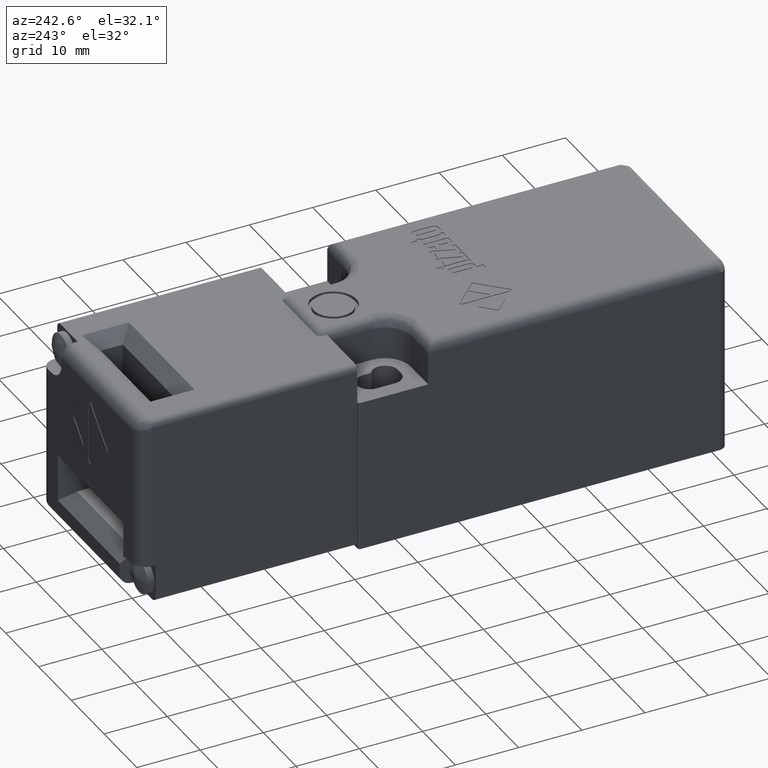
[diagram: clean part render]
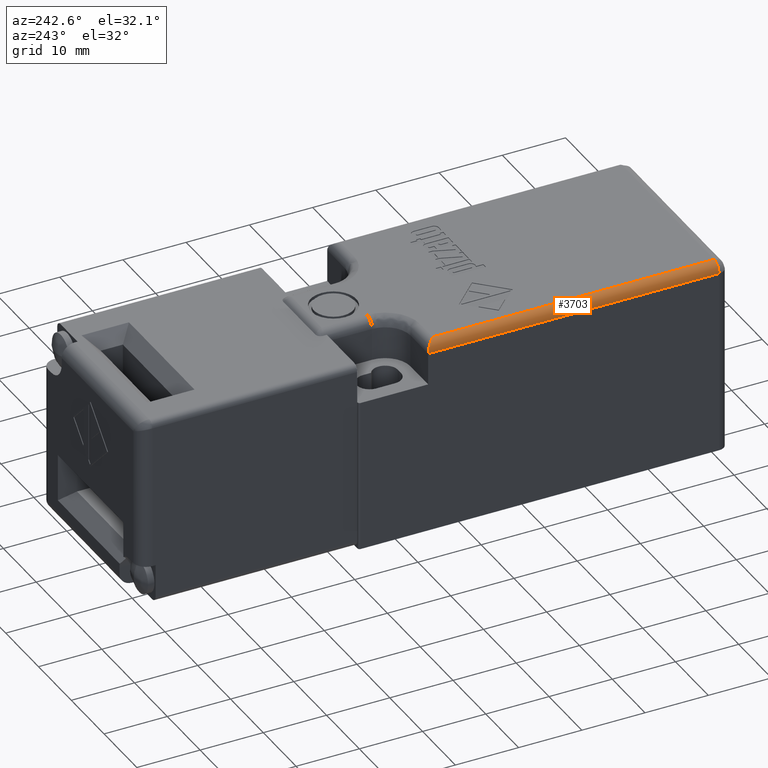
[diagram: same view with one face highlighted and labeled with its STEP entity id]
A machine part, auxiliary view. The second image highlights one B-rep face of the part: STEP entity #3703.
In plain terms, the highlighted cylindrical surface (edge-blend (fillet) strip) has radius 1.5 mm, axis along (0, -1, 0).
Its self-contained STEP definition (entity closure, byte-faithful):
#2378=CARTESIAN_POINT('',(-13.900000000000006,-5.500000000000000,18.600000000000001));
#2379=VERTEX_POINT('',#2378);
#2386=CARTESIAN_POINT('',(-13.900000000000006,-50.000000000000014,18.600000000000001));
#2387=VERTEX_POINT('',#2386);
#2388=CARTESIAN_POINT('',(-13.900000000000006,-5.500000000000000,18.600000000000001));
#2389=DIRECTION('',(0.0,-1.0,0.0));
#2390=VECTOR('',#2389,44.500000000000014);
#2391=LINE('',#2388,#2390);
#2392=EDGE_CURVE('',#2379,#2387,#2391,.T.);
#3174=CARTESIAN_POINT('',(-15.400000000000006,-50.000000000000014,17.100000000000001));
#3175=VERTEX_POINT('',#3174);
#3182=CARTESIAN_POINT('',(-15.400000000000000,-4.0,17.100000000000001));
#3183=VERTEX_POINT('',#3182);
#3184=CARTESIAN_POINT('',(-15.400000000000006,-50.000000000000014,17.100000000000001));
#3185=DIRECTION('',(0.0,1.0,0.0));
#3186=VECTOR('',#3185,46.000000000000014);
#3187=LINE('',#3184,#3186);
#3188=EDGE_CURVE('',#3175,#3183,#3187,.T.);
#3635=CARTESIAN_POINT('',(-13.900000000000006,-50.000000000000014,17.100000000000001));
#3636=DIRECTION('',(0.0,1.0,0.0));
#3637=DIRECTION('',(0.0,0.0,-1.0));
#3638=AXIS2_PLACEMENT_3D('',#3635,#3636,#3637);
#3639=CIRCLE('',#3638,1.500000000000000);
#3640=EDGE_CURVE('',#3175,#2387,#3639,.T.);
#3679=CARTESIAN_POINT('',(-13.900000000000006,-3.999810753045768,17.100000000000001));
#3680=DIRECTION('',(0.0,-1.0,0.0));
#3681=DIRECTION('',(0.0,0.0,-1.0));
#3682=AXIS2_PLACEMENT_3D('',#3679,#3680,#3681);
#3683=CYLINDRICAL_SURFACE('',#3682,1.500000000000000);
#3684=ORIENTED_EDGE('',*,*,#3640,.T.);
#3685=ORIENTED_EDGE('',*,*,#2392,.F.);
#3686=CARTESIAN_POINT('',(-15.400000000000000,-4.0,17.100000000000001));
#3687=CARTESIAN_POINT('',(-15.400000000000006,-3.999999999999999,17.978679656440356));
#3688=CARTESIAN_POINT('',(-14.778679656440364,-4.621320343559641,18.600000000000001));
#3689=CARTESIAN_POINT('',(-13.900000000000006,-5.500000000000000,18.600000000000001));
#3697=(BOUNDED_CURVE()B_SPLINE_CURVE(3,(#3686,#3687,#3688,#3689),.UNSPECIFIED.,.F.,.U.)B_SPLINE_CURVE_WITH_KNOTS((4,4),(3.141592653589793,4.712388980384691),.UNSPECIFIED.)CURVE()GEOMETRIC_REPRESENTATION_ITEM()RATIONAL_B_SPLINE_CURVE((1.0,0.804737854124365,0.804737854124365,1.0))REPRESENTATION_ITEM(''));
#3698=EDGE_CURVE('',#3183,#2379,#3697,.T.);
#3699=ORIENTED_EDGE('',*,*,#3698,.F.);
#3700=ORIENTED_EDGE('',*,*,#3188,.F.);
#3701=EDGE_LOOP('',(#3684,#3685,#3699,#3700));
#3702=FACE_OUTER_BOUND('',#3701,.T.);
#3703=ADVANCED_FACE('',(#3702),#3683,.T.);